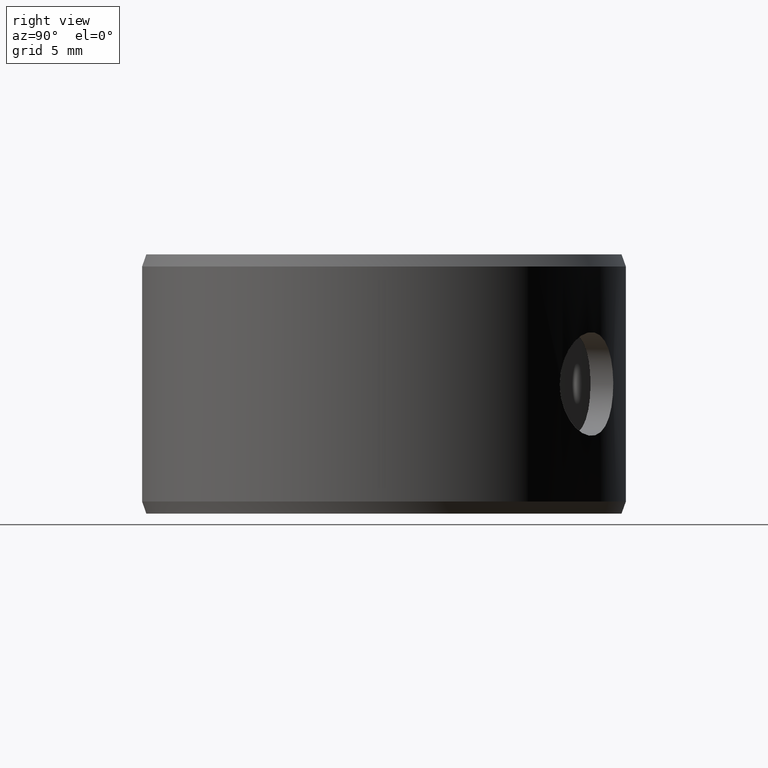
[diagram: clean part render]
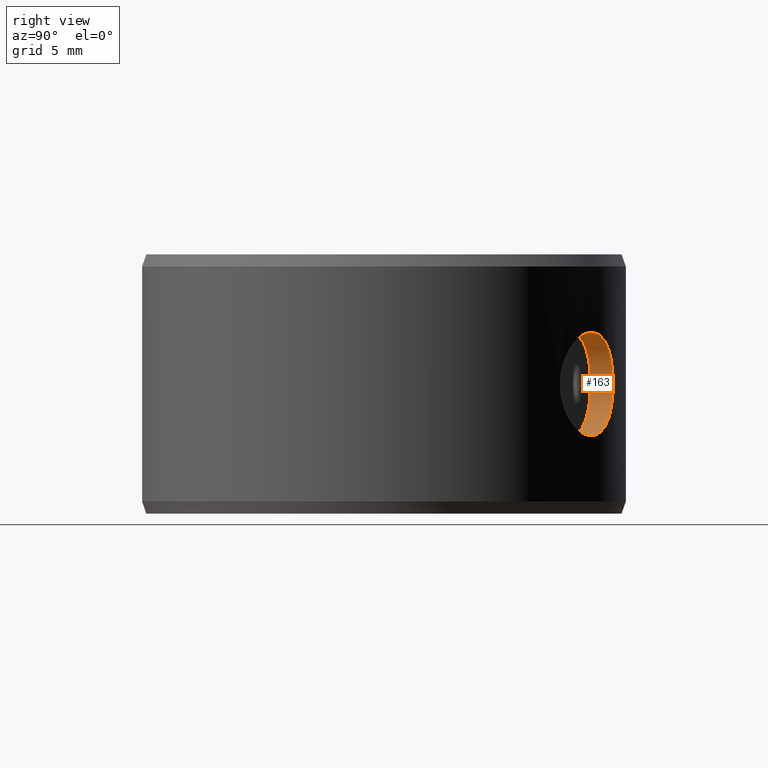
[diagram: same view with one face highlighted and labeled with its STEP entity id]
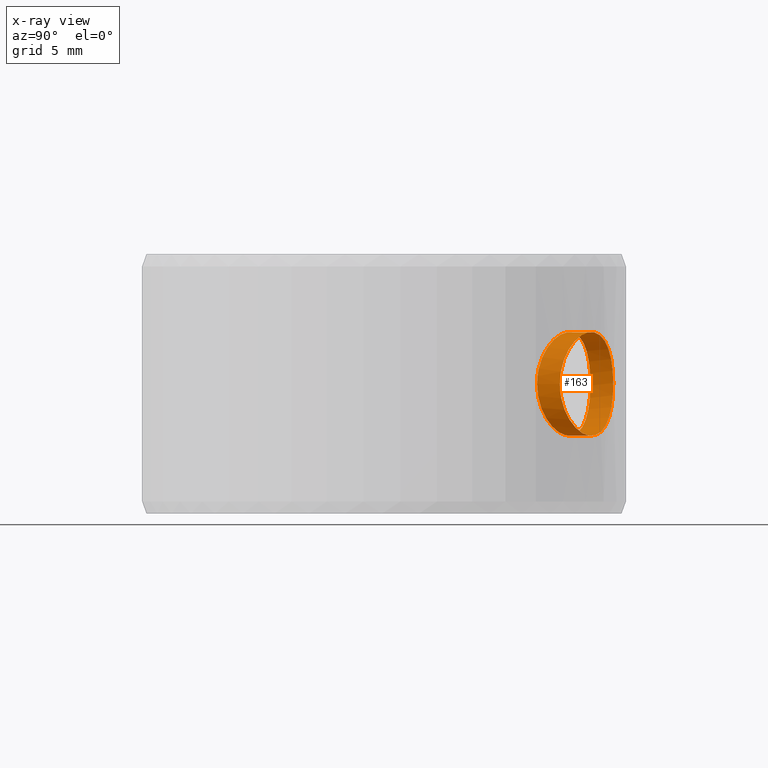
[diagram: x-ray of the same camera — body ghosted, the highlighted face saturated]
A machine part, right view. The second image highlights one B-rep face of the part: STEP entity #163.
The next image is the same camera in x-ray: the body ghosted, the highlighted face saturated — about 0% of this face is hidden behind the body in this view.
In plain terms, the highlighted cylindrical surface (bore or boss wall) has radius 3 mm, axis along (0.515, 0.8572, 0).
Its self-contained STEP definition (entity closure, byte-faithful):
#163=ADVANCED_FACE('',(#188,#189),#190,.F.);
#188=FACE_OUTER_BOUND('',#214,.T.);
#189=FACE_OUTER_BOUND('',#215,.T.);
#190=CYLINDRICAL_SURFACE('',#216,0.003);
#214=EDGE_LOOP('',(#297));
#215=EDGE_LOOP('',(#298));
#216=AXIS2_PLACEMENT_3D('',#299,#300,#301);
#297=ORIENTED_EDGE('',*,*,#326,.F.);
#298=ORIENTED_EDGE('',*,*,#327,.F.);
#299=CARTESIAN_POINT('',(0.00771450570633519,-0.00463534267416353,0.0075));
#300=DIRECTION('',(0.857167300703911,-0.515038074907061,0.0));
#301=DIRECTION('',(-0.515038074907061,-0.857167300703911,0.0));
#326=EDGE_CURVE('',#368,#368,#369,.T.);
#327=EDGE_CURVE('',#370,#370,#371,.T.);
#368=VERTEX_POINT('',#428);
#369=B_SPLINE_CURVE_WITH_KNOTS('',3,(#429,#430,#431,#432,#433,#434,#435,#436,#437,#438,#439,#440,#441,#442,#443,#444,#445,#446,#447,#448,#449,#450,#451,#452,#453,#454,#455,#456,#457,#458,#459,#460,#461,#462,#463,#464,#465,#466,#467,#468,#469,#470,#471,#472,#473,#474,#475,#476,#477,#478,#479,#480,#481,#482,#483,#484,#485,#486,#487,#488,#489,#490,#491,#492),.UNSPECIFIED.,.T.,.F.,(2,2,2,2,2,2,2,2,2,2,2,2,2,2,2,2,2,2,2,2,2,2,2,2,2,2,2,2,2,2,2,2,2,2),(-0.000588281034898592,0.0,0.00058828103489859,0.00117656206979718,0.00176484310469577,0.00235312413959436,0.00294140517449295,0.00352968620939154,0.00411796724429013,0.00470624827918872,0.00529452931408731,0.0058828103489859,0.0064710913838845,0.00705937241878309,0.00764765345368168,0.00823593448858027,0.00882421552347886,0.00941249655837745,0.0105890586281746,0.0111773396630732,0.0117656206979718,0.0123539017328704,0.012942182767769,0.0135304638026676,0.0141187448375662,0.0147070258724648,0.0152953069073633,0.0158835879422619,0.0164718689771605,0.0170601500120591,0.0176484310469577,0.0182367120818563,0.0188249931167549,0.0194132741516535),.UNSPECIFIED.);
#370=VERTEX_POINT('',#493);
#371=B_SPLINE_CURVE_WITH_KNOTS('',3,(#494,#495,#496,#497,#498,#499,#500,#501,#502,#503,#504,#505,#506,#507,#508,#509,#510,#511,#512,#513,#514,#515,#516,#517,#518,#519,#520,#521,#522,#523,#524,#525,#526,#527,#528,#529,#530,#531,#532,#533,#534,#535,#536,#537,#538,#539,#540,#541,#542,#543,#544,#545,#546,#547,#548,#549,#550,#551,#552,#553),.UNSPECIFIED.,.T.,.F.,(2,2,2,2,2,2,2,2,2,2,2,2,2,2,2,2,2,2,2,2,2,2,2,2,2,2,2,2,2,2,2,2),(-0.000587838766358768,0.0,0.000587838766358771,0.00117567753271754,0.00176351629907631,0.00235135506543508,0.00293919383179385,0.00352703259815262,0.00411487136451139,0.00470271013087016,0.00529054889722894,0.00587838766358771,0.00646622642994648,0.00705406519630525,0.00764190396266402,0.00822974272902279,0.00881758149538156,0.00940542026174033,0.0105810977944579,0.0111689365608166,0.0117567753271754,0.0123446140935342,0.012932452859893,0.0141081303926105,0.0146959691589693,0.015283807925328,0.0158716466916868,0.0164594854580456,0.0176351629907631,0.0182230017571219,0.0188108405234807,0.0193986792898394),.UNSPECIFIED.);
#428=CARTESIAN_POINT('',(0.00885632047490393,-0.00882131439445378,0.0075));
#429=CARTESIAN_POINT('',(0.00885632047490393,-0.00882131439445378,0.00769897629236843));
#430=CARTESIAN_POINT('',(0.00885632047490393,-0.00882131439445378,0.00730102370763157));
#431=CARTESIAN_POINT('',(0.008870608015087,-0.00880703515908166,0.00710552353993709));
#432=CARTESIAN_POINT('',(0.00892599499023425,-0.00875089528476596,0.00672114284022996));
#433=CARTESIAN_POINT('',(0.00896779204067812,-0.00870831130558218,0.00653022657795962));
#434=CARTESIAN_POINT('',(0.00907484727826891,-0.00859669278012629,0.00616731017956878));
#435=CARTESIAN_POINT('',(0.0091396786892607,-0.00852810696772537,0.00599529929286672));
#436=CARTESIAN_POINT('',(0.00928976897487818,-0.00836436054873789,0.00566976204525108));
#437=CARTESIAN_POINT('',(0.00937545269464949,-0.00826864229251243,0.00551622160314748));
#438=CARTESIAN_POINT('',(0.00955810451651012,-0.00805681057507277,0.0052406385914374));
#439=CARTESIAN_POINT('',(0.00965584091228449,-0.00793990352391979,0.00511670706961737));
#440=CARTESIAN_POINT('',(0.00986245049769695,-0.00768175773329114,0.00489734614026971));
#441=CARTESIAN_POINT('',(0.00996895282431969,-0.00754339318071887,0.00480461730849215));
#442=CARTESIAN_POINT('',(0.0101833126175242,-0.00725140987851323,0.00465473453464443));
#443=CARTESIAN_POINT('',(0.0102926883023463,-0.00709564698354434,0.0045967184624443));
#444=CARTESIAN_POINT('',(0.0105079342040151,-0.00677281015298865,0.0045193536365746));
#445=CARTESIAN_POINT('',(0.0106124294144885,-0.00660794509533712,0.0045001216828471));
#446=CARTESIAN_POINT('',(0.0108148478169199,-0.00627117717476989,0.00449987945728094));
#447=CARTESIAN_POINT('',(0.0109135801933662,-0.00609762006583403,0.00451953326133243));
#448=CARTESIAN_POINT('',(0.0110965180618742,-0.00575799357474428,0.00459640292515818));
#449=CARTESIAN_POINT('',(0.0111816475900836,-0.00559054477060253,0.00465326972729905));
#450=CARTESIAN_POINT('',(0.0113403842774647,-0.00526109476253425,0.00480425405408531));
#451=CARTESIAN_POINT('',(0.0114129447817266,-0.00510112201082134,0.00489783921307462));
#452=CARTESIAN_POINT('',(0.0115425146926919,-0.00480074045632727,0.00511465432702435));
#453=CARTESIAN_POINT('',(0.0116005903623565,-0.00465791971312208,0.0052395049627046));
#454=CARTESIAN_POINT('',(0.0117027872337349,-0.00439484741157424,0.005517604453523));
#455=CARTESIAN_POINT('',(0.0117461510535234,-0.00427670620915678,0.0056682598435595));
#456=CARTESIAN_POINT('',(0.0118201284333513,-0.00406778126141385,0.0059924770510523));
#457=CARTESIAN_POINT('',(0.011850935043456,-0.00397634096719326,0.00616814542827026));
#458=CARTESIAN_POINT('',(0.0118991014398589,-0.00382979553181898,0.00653028357756143));
#459=CARTESIAN_POINT('',(0.0119167805745733,-0.00377384767185728,0.0067172788549418));
#460=CARTESIAN_POINT('',(0.0119405815194949,-0.00369785052283178,0.00710337951537278));
#461=CARTESIAN_POINT('',(0.0119465236521878,-0.00367839267004559,0.00730254112040654));
#462=CARTESIAN_POINT('',(0.0119465992239134,-0.00367814722550706,0.00789110545900317));
#463=CARTESIAN_POINT('',(0.0119232522966096,-0.00375628047129552,0.00828726127403094));
#464=CARTESIAN_POINT('',(0.0118513342251184,-0.00397514454598179,0.00882928807772022));
#465=CARTESIAN_POINT('',(0.0118206911688308,-0.00406615574208262,0.00900472891133975));
#466=CARTESIAN_POINT('',(0.011746490928873,-0.00427578216068718,0.00933057440331463));
#467=CARTESIAN_POINT('',(0.0117031367488794,-0.00439388828283013,0.00948114698362763));
#468=CARTESIAN_POINT('',(0.011601620184016,-0.00465532739029126,0.00975798611824578));
#469=CARTESIAN_POINT('',(0.0115430961704468,-0.00479934123048276,0.00988419877742766));
#470=CARTESIAN_POINT('',(0.0114135849027942,-0.00509968872711895,0.0101012618947197));
#471=CARTESIAN_POINT('',(0.0113421123644622,-0.00525737851129371,0.0101937608573922));
#472=CARTESIAN_POINT('',(0.0111832198078767,-0.00558740873999863,0.0103455692219099));
#473=CARTESIAN_POINT('',(0.0110973288083126,-0.00575640766381113,0.0104030737531293));
#474=CARTESIAN_POINT('',(0.0109151161514992,-0.00609484825660741,0.0104800016490617));
#475=CARTESIAN_POINT('',(0.0108173736849522,-0.00626686561599889,0.0104998891866558));
#476=CARTESIAN_POINT('',(0.0106135314215664,-0.00660621895279797,0.0105001098809488));
#477=CARTESIAN_POINT('',(0.0105089759240249,-0.0067711595135508,0.0104808202130408));
#478=CARTESIAN_POINT('',(0.0102951372783323,-0.00709206067021261,0.0104043590850992));
#479=CARTESIAN_POINT('',(0.0101848791362311,-0.00724922664872761,0.0103462249499299));
#480=CARTESIAN_POINT('',(0.00996975439848409,-0.007542350247646,0.010196077516805));
#481=CARTESIAN_POINT('',(0.00986397798926059,-0.00767978968537375,0.0101040447323065));
#482=CARTESIAN_POINT('',(0.00965780549801637,-0.00793750743915715,0.00988560577702691));
#483=CARTESIAN_POINT('',(0.0095587844422973,-0.00805600328527542,0.00976026340877847));
#484=CARTESIAN_POINT('',(0.00937619612526623,-0.0082677986893257,0.00948502297870451));
#485=CARTESIAN_POINT('',(0.00929124334120056,-0.00836273319142893,0.00933316380406959));
#486=CARTESIAN_POINT('',(0.00914011524230402,-0.00852764930176145,0.00900591611336649));
#487=CARTESIAN_POINT('',(0.00907529089706563,-0.00859622219280752,0.00883382025247267));
#488=CARTESIAN_POINT('',(0.00896859356352326,-0.00870748358291922,0.00847285967366354));
#489=CARTESIAN_POINT('',(0.00892652226065832,-0.00875035912219712,0.00828188926216425));
#490=CARTESIAN_POINT('',(0.00887061251358724,-0.00880703230783426,0.00789512884130825));
#491=CARTESIAN_POINT('',(0.00885632047490393,-0.00882131439445378,0.00769897629236843));
#492=CARTESIAN_POINT('',(0.00885632047490393,-0.00882131439445378,0.00730102370763157));
#493=CARTESIAN_POINT('',(0.0101764723198152,-0.0096145416491913,0.0075));
#494=CARTESIAN_POINT('',(0.0101764723198152,-0.00961454164919131,0.00730118593650005));
#495=CARTESIAN_POINT('',(0.0101764723198152,-0.0096145416491913,0.00769881406349995));
#496=CARTESIAN_POINT('',(0.0101902650341411,-0.00960000163605004,0.00789418688489421));
#497=CARTESIAN_POINT('',(0.0102437993880451,-0.00954285633213078,0.00827836917164953));
#498=CARTESIAN_POINT('',(0.010284210463045,-0.00949952259149728,0.0084692075158694));
#499=CARTESIAN_POINT('',(0.0103879519367457,-0.00938596659244176,0.00883220712449725));
#500=CARTESIAN_POINT('',(0.010450847191623,-0.00931622383579142,0.00900428148203671));
#501=CARTESIAN_POINT('',(0.0105967371648665,-0.00914993961947066,0.00932993824528099));
#502=CARTESIAN_POINT('',(0.0106802176616042,-0.00905275787846214,0.00948366403376303));
#503=CARTESIAN_POINT('',(0.0108585521730745,-0.00883806082859362,0.00975947905398487));
#504=CARTESIAN_POINT('',(0.0109541407065516,-0.00871974999828462,0.00988345933849129));
#505=CARTESIAN_POINT('',(0.0111566563984231,-0.008459093134553,0.0101028045636814));
#506=CARTESIAN_POINT('',(0.0112614479554259,-0.00831940765858629,0.0101956355344842));
#507=CARTESIAN_POINT('',(0.0114727414244555,-0.00802551917635824,0.0103454586896516));
#508=CARTESIAN_POINT('',(0.011580769463396,-0.00786914137350822,0.0104033853498577));
#509=CARTESIAN_POINT('',(0.0117942889183208,-0.00754535328740534,0.0104806861599206));
#510=CARTESIAN_POINT('',(0.0118982967452887,-0.00738031594652709,0.0104998815666925));
#511=CARTESIAN_POINT('',(0.0121005314572932,-0.00704383896469589,0.0105001173511147));
#512=CARTESIAN_POINT('',(0.0121996173481958,-0.00687069848726047,0.0104805016202706));
#513=CARTESIAN_POINT('',(0.0123841677614814,-0.00653219335298094,0.010403707682941));
#514=CARTESIAN_POINT('',(0.0124704869486117,-0.0063655552391746,0.0103468953102092));
#515=CARTESIAN_POINT('',(0.0126322559424786,-0.00603816595020306,0.0101960904048311));
#516=CARTESIAN_POINT('',(0.0127068146666752,-0.00587907690022151,0.0101024245944212));
#517=CARTESIAN_POINT('',(0.0128405314551688,-0.00558098881209875,0.00988556366315308));
#518=CARTESIAN_POINT('',(0.0129007761920341,-0.00543965417907653,0.00976090263130118));
#519=CARTESIAN_POINT('',(0.0130076736262932,-0.00517883102415349,0.0094823588330525));
#520=CARTESIAN_POINT('',(0.0130533132641714,-0.00506193574406981,0.00933153031859164));
#521=CARTESIAN_POINT('',(0.0131314953360373,-0.00485551345269624,0.00900720899227364));
#522=CARTESIAN_POINT('',(0.0131642650688123,-0.00476529287753478,0.0088315684142279));
#523=CARTESIAN_POINT('',(0.01321572220727,-0.00462066851774794,0.00846915844940655));
#524=CARTESIAN_POINT('',(0.0132346931598278,-0.00456557320570977,0.00828217212781126));
#525=CARTESIAN_POINT('',(0.0132602571532514,-0.00449078411428717,0.00789646905386751));
#526=CARTESIAN_POINT('',(0.0132666741915814,-0.0044716166988359,0.00769733007108117));
#527=CARTESIAN_POINT('',(0.0132667536733888,-0.00447138088258503,0.00710905860191172));
#528=CARTESIAN_POINT('',(0.0132414830621486,-0.00454823423733293,0.00671317710663832));
#529=CARTESIAN_POINT('',(0.0131647320544528,-0.00476399590944044,0.0061712731941084));
#530=CARTESIAN_POINT('',(0.0131321790553477,-0.004853675040902,0.00599597878418205));
#531=CARTESIAN_POINT('',(0.0130536746126995,-0.00506101444871998,0.00566962178692076));
#532=CARTESIAN_POINT('',(0.013008046116108,-0.00517786384280027,0.00551894732410814));
#533=CARTESIAN_POINT('',(0.0129020706836692,-0.00543655311819682,0.00524214011696051));
#534=CARTESIAN_POINT('',(0.0128412087517205,-0.00557943223744085,0.00511571472160185));
#535=CARTESIAN_POINT('',(0.0127074712537408,-0.0058776594519254,0.00489846208908278));
#536=CARTESIAN_POINT('',(0.0126341313028926,-0.00603424542581476,0.00480602854088815));
#537=CARTESIAN_POINT('',(0.0123914309908542,-0.00652579531932199,0.0045786780945265));
#538=CARTESIAN_POINT('',(0.0122052961637008,-0.00686932445999531,0.00450025940736324));
#539=CARTESIAN_POINT('',(0.0118993792687237,-0.00737861716476427,0.0044998712567188));
#540=CARTESIAN_POINT('',(0.0117952888573102,-0.00754375459057772,0.00451916161589447));
#541=CARTESIAN_POINT('',(0.0115833680123802,-0.00786528181567674,0.00459546763964119));
#542=CARTESIAN_POINT('',(0.0114744341740383,-0.00802311685039887,0.00465348837150277));
#543=CARTESIAN_POINT('',(0.0112622532479297,-0.00831833489281303,0.00480364782707708));
#544=CARTESIAN_POINT('',(0.0111583343766565,-0.00845687041319744,0.00489565131456545));
#545=CARTESIAN_POINT('',(0.0109564576745339,-0.00871682961133435,0.00511376320464763));
#546=CARTESIAN_POINT('',(0.0108593029673298,-0.00883713781568895,0.00523950081884854));
#547=CARTESIAN_POINT('',(0.0105918897025791,-0.00915913398566436,0.00565266512465704));
#548=CARTESIAN_POINT('',(0.0104400819199029,-0.00932888908293525,0.00598619438676966));
#549=CARTESIAN_POINT('',(0.0102850588516749,-0.00949860173507564,0.00652742350280974));
#550=CARTESIAN_POINT('',(0.0102444141804405,-0.00954219818898075,0.00671797554365251));
#551=CARTESIAN_POINT('',(0.0101902687928687,-0.00959999948475432,0.00710503805998482));
#552=CARTESIAN_POINT('',(0.0101764723198152,-0.00961454164919131,0.00730118593650005));
#553=CARTESIAN_POINT('',(0.0101764723198152,-0.0096145416491913,0.00769881406349995));